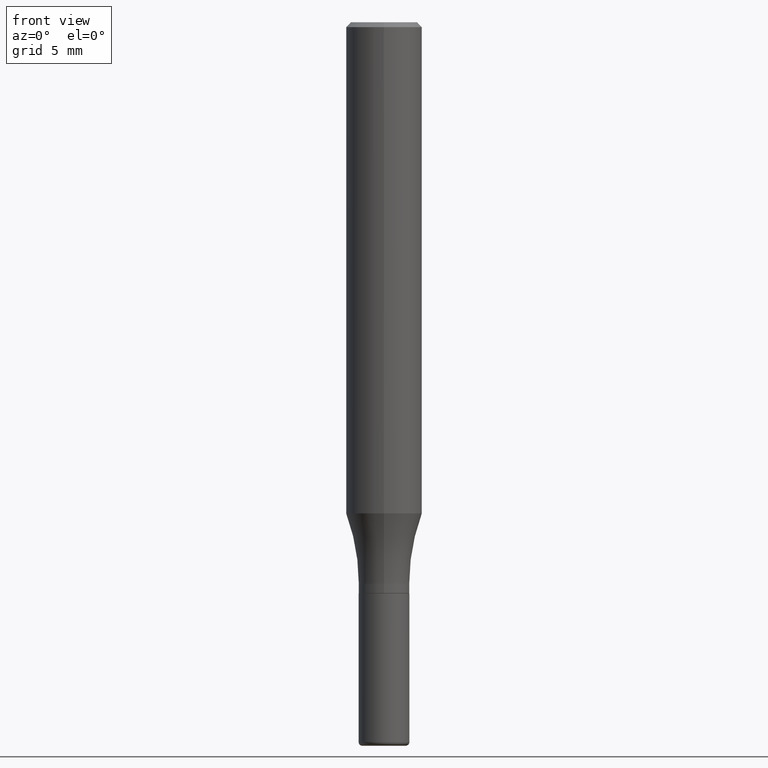
[diagram: clean part render]
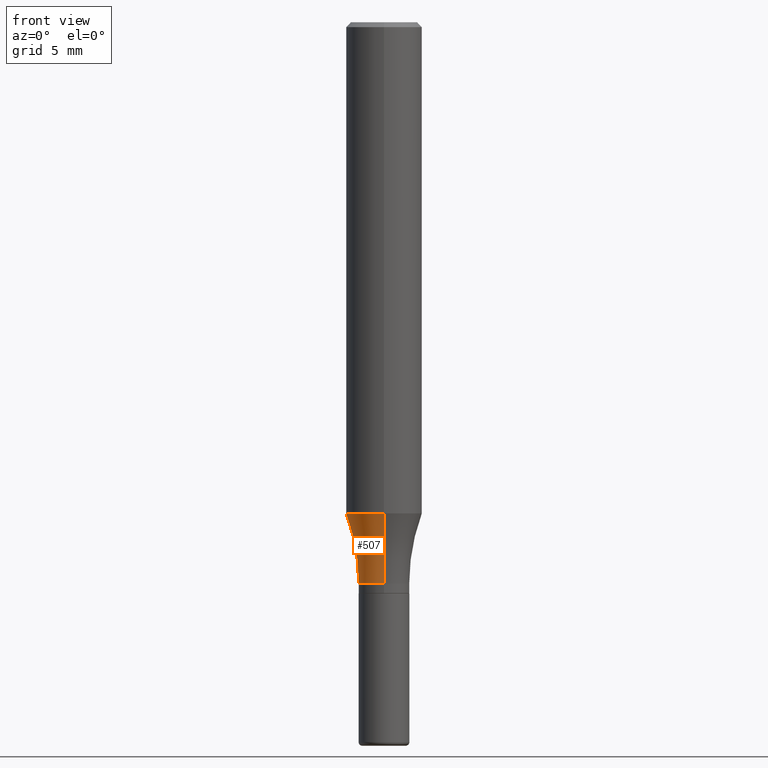
[diagram: same view with one face highlighted and labeled with its STEP entity id]
A machine part, front view. The second image highlights one B-rep face of the part: STEP entity #507.
In plain terms, the highlighted toroidal blend (fillet) surface has major radius 17.8752 mm and minor (blend) radius 15.875 mm.
Its self-contained STEP definition (entity closure, byte-faithful):
#23 = CARTESIAN_POINT ( 'NONE',  ( -8.246878922347106931E-16, -0.1181000000000053951, -1.523436220366272131 ) ) ;
#28 = AXIS2_PLACEMENT_3D ( 'NONE', #189, #314, #311 ) ;
#40 = CIRCLE ( 'NONE', #434, 0.1181000000000000383 ) ;
#52 = CARTESIAN_POINT ( 'NONE',  ( 8.391509709327160624E-16, 0.1180999999999946676, -1.523436220366273020 ) ) ;
#65 = EDGE_LOOP ( 'NONE', ( #124, #297, #211, #505 ) ) ;
#80 = DIRECTION ( 'NONE',  ( 1.000000000000000000, -7.105427357601001070E-15, 4.926309029019398732E-29 ) ) ;
#81 = EDGE_CURVE ( 'NONE', #88, #358, #187, .T. ) ;
#88 = VERTEX_POINT ( 'NONE', #114 ) ;
#96 = CARTESIAN_POINT ( 'NONE',  ( -4.914259984421666652E-15, -0.7037500000000060929, -1.741699999999997139 ) ) ;
#97 = CARTESIAN_POINT ( 'NONE',  ( 3.726078609641658463E-29, -5.318243094613442822E-15, -1.523436220366272575 ) ) ;
#99 = DIRECTION ( 'NONE',  ( -1.000000000000000000, 6.982962677686265922E-15, -4.883557194083112340E-29 ) ) ;
#114 = CARTESIAN_POINT ( 'NONE',  ( 6.993516876719189285E-16, 0.07874999999999386657, -1.741699999999999804 ) ) ;
#115 = EDGE_CURVE ( 'NONE', #385, #484, #40, .T. ) ;
#124 = ORIENTED_EDGE ( 'NONE', *, *, #115, .F. ) ;
#159 = DIRECTION ( 'NONE',  ( -2.445838269977468989E-29, 3.490952245663952321E-15, 1.000000000000000000 ) ) ;
#180 = DIRECTION ( 'NONE',  ( -6.982962677686266711E-15, -1.000000000000000000, 3.490952245663952321E-15 ) ) ;
#187 = CIRCLE ( 'NONE', #28, 0.07874999999999994504 ) ;
#189 = CARTESIAN_POINT ( 'NONE',  ( 4.259916514819756909E-29, -6.080191526272904006E-15, -1.741699999999999582 ) ) ;
#192 = AXIS2_PLACEMENT_3D ( 'NONE', #448, #80, #233 ) ;
#211 = ORIENTED_EDGE ( 'NONE', *, *, #81, .T. ) ;
#222 = EDGE_CURVE ( 'NONE', #385, #88, #352, .T. ) ;
#233 = DIRECTION ( 'NONE',  ( 7.105427357601001859E-15, 1.000000000000000000, 0.000000000000000000 ) ) ;
#234 = CIRCLE ( 'NONE', #262, 0.6250000000000000000 ) ;
#254 = TOROIDAL_SURFACE ( 'NONE', #293, 0.7037499999999999867, 0.6250000000000000000 ) ;
#261 = CARTESIAN_POINT ( 'NONE',  ( 4.259273019732651791E-29, -6.081113047863105345E-15, -1.741699999999999582 ) ) ;
#262 = AXIS2_PLACEMENT_3D ( 'NONE', #96, #99, #329 ) ;
#267 = FACE_OUTER_BOUND ( 'NONE', #65, .T. ) ;
#290 = CARTESIAN_POINT ( 'NONE',  ( -5.499083108677504514E-16, -0.07875000000000602352, -1.741699999999999360 ) ) ;
#293 = AXIS2_PLACEMENT_3D ( 'NONE', #261, #392, #180 ) ;
#297 = ORIENTED_EDGE ( 'NONE', *, *, #222, .T. ) ;
#311 = DIRECTION ( 'NONE',  ( -6.982962677686265922E-15, -1.000000000000000000, 3.469013325287955660E-15 ) ) ;
#314 = DIRECTION ( 'NONE',  ( -2.445838269977468989E-29, 3.490952245663952321E-15, 1.000000000000000000 ) ) ;
#329 = DIRECTION ( 'NONE',  ( -6.982962677686265133E-15, -1.000000000000000000, 0.000000000000000000 ) ) ;
#334 = EDGE_CURVE ( 'NONE', #484, #358, #234, .T. ) ;
#352 = CIRCLE ( 'NONE', #192, 0.6250000000000000000 ) ;
#358 = VERTEX_POINT ( 'NONE', #290 ) ;
#372 = DIRECTION ( 'NONE',  ( -6.982962677686265922E-15, -1.000000000000000000, 4.626330217890367758E-15 ) ) ;
#385 = VERTEX_POINT ( 'NONE', #52 ) ;
#392 = DIRECTION ( 'NONE',  ( -2.445838269977468989E-29, 3.490952245663952321E-15, 1.000000000000000000 ) ) ;
#434 = AXIS2_PLACEMENT_3D ( 'NONE', #97, #159, #372 ) ;
#448 = CARTESIAN_POINT ( 'NONE',  ( 5.000444502911746773E-15, 0.7037499999999938805, -1.741700000000002024 ) ) ;
#484 = VERTEX_POINT ( 'NONE', #23 ) ;
#505 = ORIENTED_EDGE ( 'NONE', *, *, #334, .F. ) ;
#507 = ADVANCED_FACE ( 'NONE', ( #267 ), #254, .F. ) ;